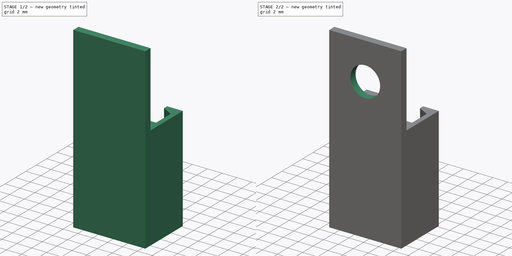
[diagram: build sequence overview — one tinted view per stage of 2, left to right]
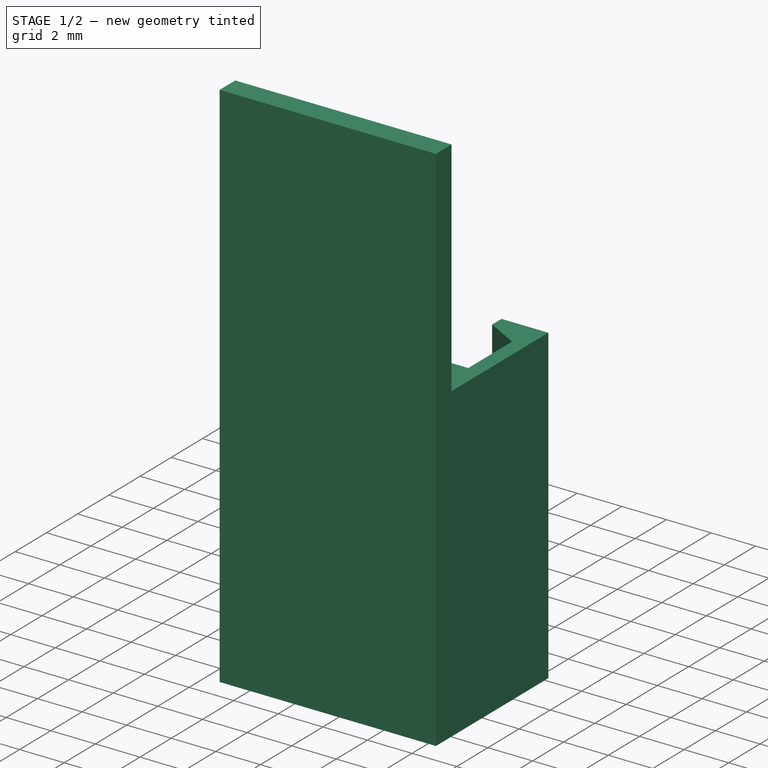
[diagram: stage 1 of 2 — iso view after this stage's code; geometry added in this stage tinted green]
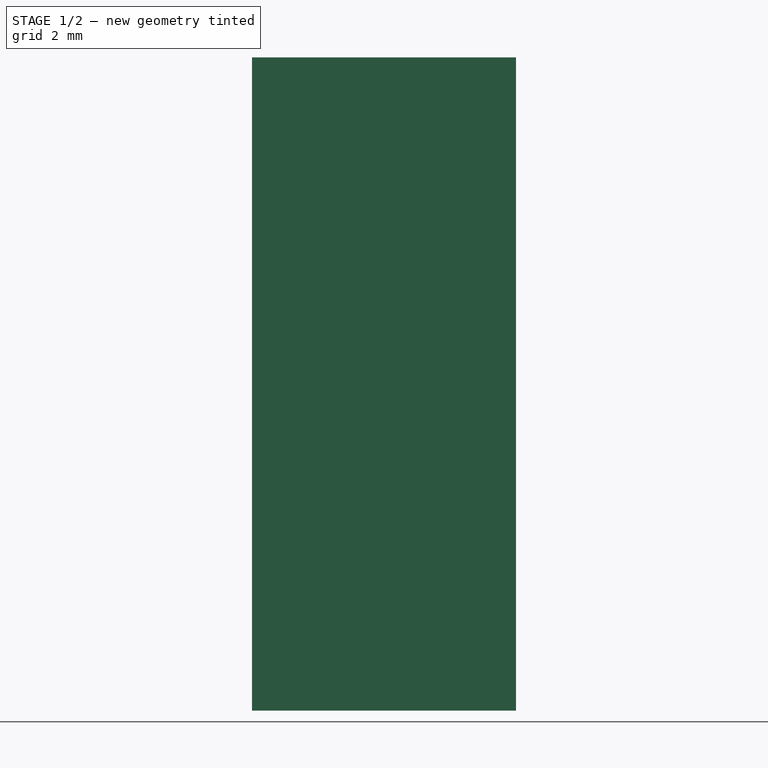
[diagram: stage 1 of 2 — front view after this stage's code; geometry added in this stage tinted green]
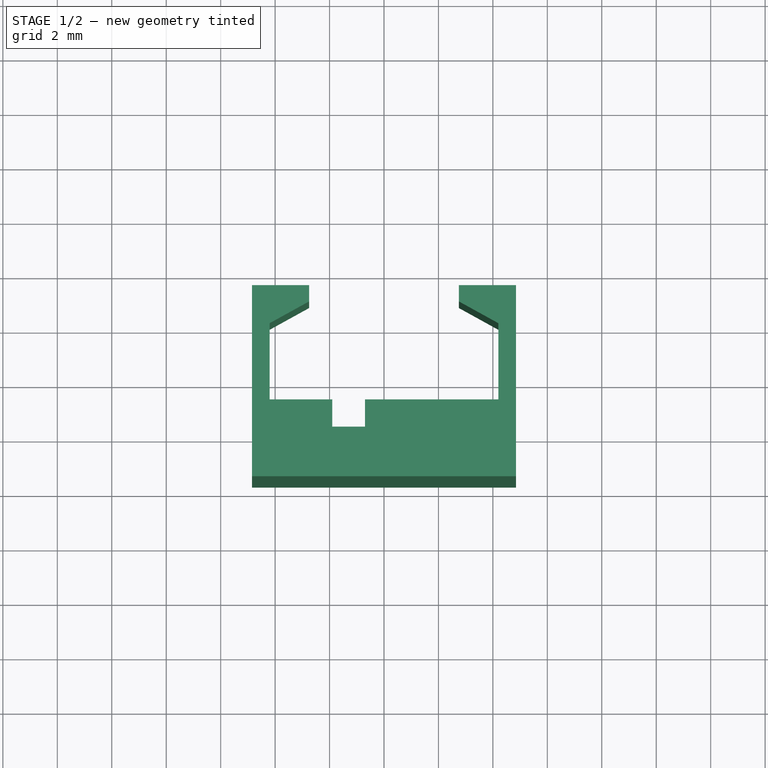
[diagram: stage 1 of 2 — top view after this stage's code; geometry added in this stage tinted green]
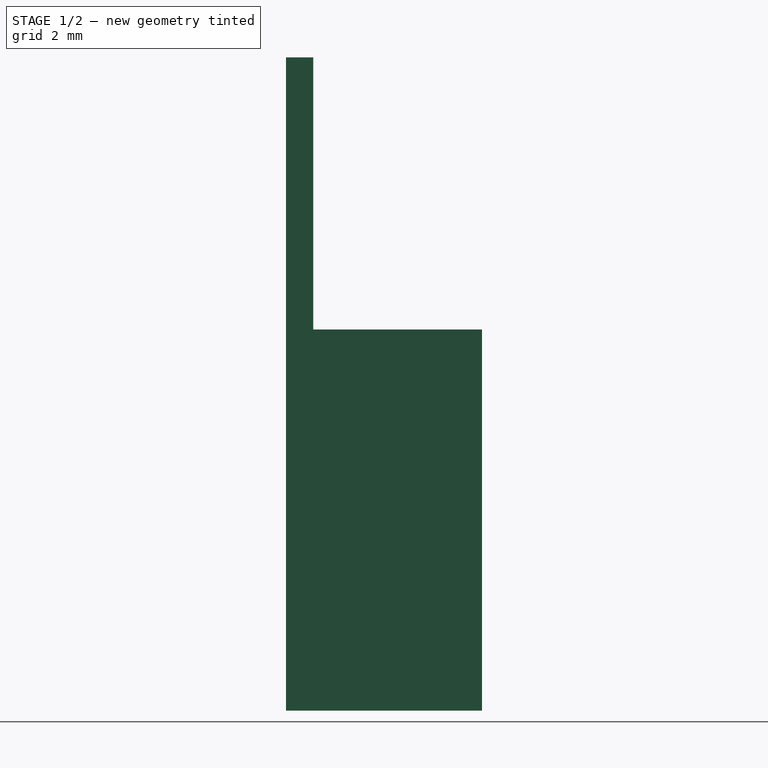
[diagram: stage 1 of 2 — right view after this stage's code; geometry added in this stage tinted green]
FCSTD DOCUMENT  (FreeCAD 0.16R6706 (Git))
Label: portacables
License: CreativeCommons Attribution-ShareAlike
LicenseURL: http://creativecommons.org/licenses/by-sa/4.0/
objects: Sketcher::SketchObject×3, PartDesign::Pad×2, PartDesign::Pocket×1
note: 9 computed .brp shape members not serialized (recipe doc carries the construction recipe); baked Part::Feature solids carry a one-line shape summary decoded from their .brp

FEATURE [Sketcher::SketchObject] Sketch
  sketch-geometry (17):
    g0: LineSegment StartX=-2.75 StartY=3.51662 StartZ=0 EndX=-4.85 EndY=3.51662 EndZ=0
    g1: LineSegment StartX=-4.85 StartY=3.51662 StartZ=0 EndX=-4.85 EndY=-3.68338 EndZ=0
    g2: LineSegment StartX=-4.85 StartY=-3.68338 StartZ=0 EndX=4.85 EndY=-3.68338 EndZ=0
    g3: LineSegment StartX=4.85 StartY=-3.68338 StartZ=0 EndX=4.85 EndY=3.51662 EndZ=0
    g4: LineSegment StartX=4.85 StartY=3.51662 StartZ=0 EndX=2.75 EndY=3.51662 EndZ=0
    g5: LineSegment StartX=2.75 StartY=3.51662 StartZ=0 EndX=2.75 EndY=2.91662 EndZ=0
    g6: LineSegment StartX=2.75 StartY=2.91662 StartZ=0 EndX=4.2 EndY=2.11662 EndZ=0
    g7: LineSegment StartX=4.2 StartY=2.11662 StartZ=0 EndX=4.2 EndY=-0.683379 EndZ=0
    g8: LineSegment StartX=4.2 StartY=-0.683379 StartZ=0 EndX=-0.7 EndY=-0.683379 EndZ=0
    g9: LineSegment StartX=-0.7 StartY=-0.683379 StartZ=0 EndX=-0.7 EndY=-1.68338 EndZ=0
    g10: LineSegment StartX=-0.7 StartY=-1.68338 StartZ=0 EndX=-1.9 EndY=-1.68338 EndZ=0
    g11: LineSegment StartX=-1.9 StartY=-1.68338 StartZ=0 EndX=-1.9 EndY=-0.683379 EndZ=0
    g12: LineSegment StartX=-1.9 StartY=-0.683379 StartZ=0 EndX=-4.2 EndY=-0.683379 EndZ=0
    g13: LineSegment StartX=-4.2 StartY=-0.683379 StartZ=0 EndX=-4.2 EndY=2.11662 EndZ=0
    g14: LineSegment StartX=-4.2 StartY=2.11662 StartZ=0 EndX=-2.75 EndY=2.91662 EndZ=0
    g15: LineSegment StartX=-2.75 StartY=2.91662 StartZ=0 EndX=-2.75 EndY=3.51662 EndZ=0
    g16: LineSegment [constr] StartX=4.2 StartY=-0.683379 StartZ=0 EndX=4.2 EndY=-3.68338 EndZ=0
  constraints (48):
    c: Horizontal(g0)
    c: Coincident(g0,g1)
    c: Vertical(g1)
    c: Coincident(g1,g2)
    c: Horizontal(g2)
    c: Coincident(g2,g3)
    c: Vertical(g3)
    c: Coincident(g3,g4)
    c: Horizontal(g4)
    c: Coincident(g4,g5)
    c: Vertical(g5)
    c: Coincident(g5,g6)
    c: Coincident(g6,g7)
    c: Vertical(g7)
    c: Coincident(g7,g8)
    c: Horizontal(g8)
    c: Coincident(g8,g9)
    c: Coincident(g9,g10)
    c: Horizontal(g10)
    c: Coincident(g10,g11)
    c: Vertical(g11)
    c: Coincident(g11,g12)
    c: Horizontal(g12)
    c: Coincident(g12,g13)
    c: Vertical(g13)
    c: Equal(g0,g4)
    c: Symmetric(g0,g4,g-2)
    c: DistanceX(g0,g0) = 2.1
    c: DistanceX(g8,g8) = 4.9
    c: DistanceX(g10,g10) = 1.2
    c: DistanceX(g12,g12) = 2.3
    c: DistanceY(g13,g13) = 2.8
    c: Equal(g13,g7)
    c: Equal(g11,g9)
    c: Parallel(g9,g-2)
    c: DistanceX(g2,g2) = 9.7
    c: DistanceY(g1,g1) = 7.2
    c: Symmetric(g13,g6,g-2)
    c: DistanceY(g11,g11) = 1
    c: Coincident(g13,g14)
    c: Coincident(g14,g15)
    c: Coincident(g15,g0)
    c: Symmetric(g14,g5,g-2)
    c: DistanceY(g15,g15) = 0.6
    c: Coincident(g16,g7)
    c: PointOnObject(g16,g2)
    c: Parallel(g16,g-2)
    c: DistanceY(g16,g16) = 3
FEATURE [PartDesign::Pad] Pad  label="Portacables"
  Length = 14
  Length2 = 100
  Sketch = -> Sketch
  Type = 0
FEATURE [Sketcher::SketchObject] Sketch001
  ExternalGeometry = -> [Pad]
  Placement = pos=(0,0,14) rot=(0,0,1;0rad)
  Support = -> Pad [Face18]
  sketch-geometry (4):
    g0: LineSegment StartX=-4.85 StartY=-3.68338 StartZ=0 EndX=4.85 EndY=-3.68338 EndZ=0
    g1: LineSegment StartX=4.85 StartY=-3.68338 StartZ=0 EndX=4.85 EndY=-2.68338 EndZ=0
    g2: LineSegment StartX=4.85 StartY=-2.68338 StartZ=0 EndX=-4.85 EndY=-2.68338 EndZ=0
    g3: LineSegment StartX=-4.85 StartY=-2.68338 StartZ=0 EndX=-4.85 EndY=-3.68338 EndZ=0
  constraints (11):
    c: Coincident(g0,g1)
    c: Coincident(g1,g2)
    c: Coincident(g2,g3)
    c: Coincident(g3,g0)
    c: Horizontal(g0)
    c: Horizontal(g2)
    c: Vertical(g1)
    c: Vertical(g3)
    c: Coincident(g0,g-3)
    c: Coincident(g0,g-3)
    c: DistanceY(g1,g1) = 1
FEATURE [PartDesign::Pad] Pad001
  Length = 10
  Length2 = 100
  Sketch = -> Sketch001
  Type = 0
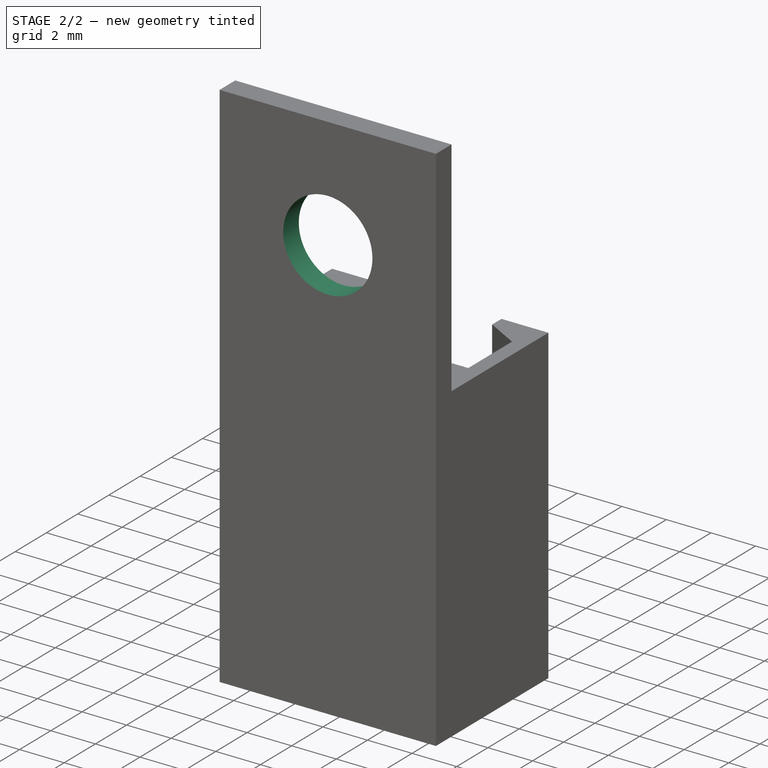
[diagram: stage 2 of 2 — iso view after this stage's code; geometry added in this stage tinted green]
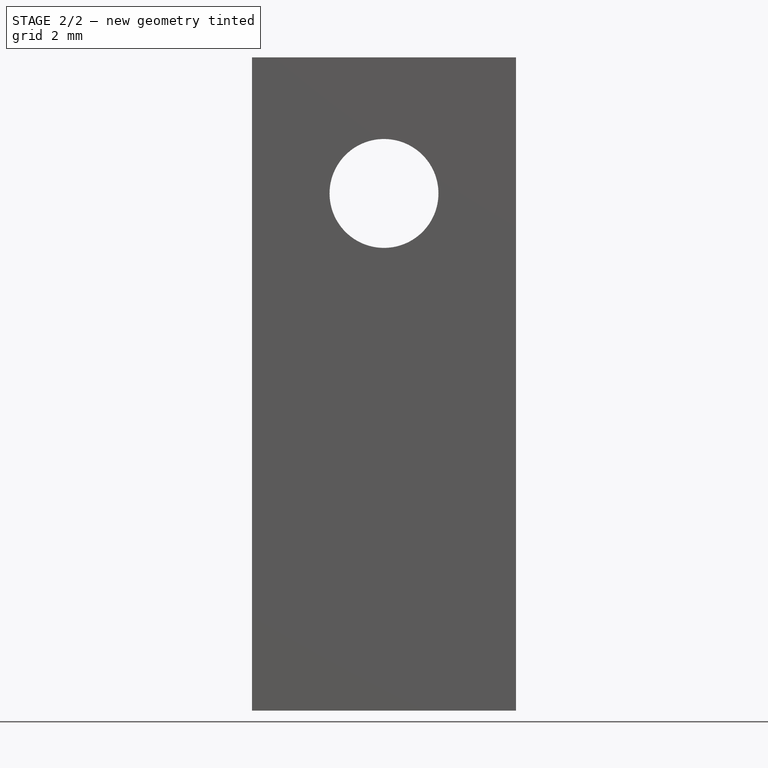
[diagram: stage 2 of 2 — front view after this stage's code; geometry added in this stage tinted green]
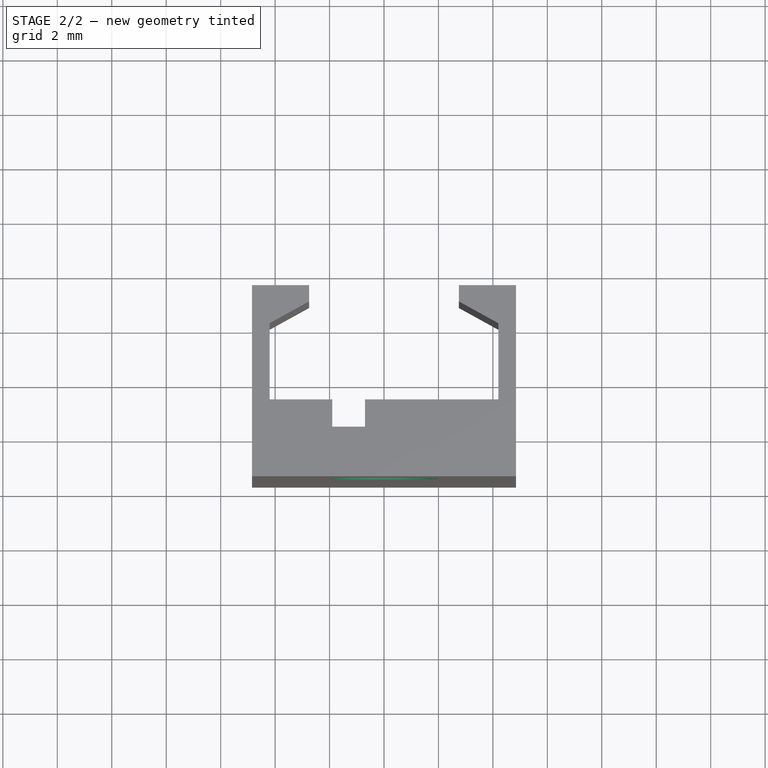
[diagram: stage 2 of 2 — top view after this stage's code; geometry added in this stage tinted green]
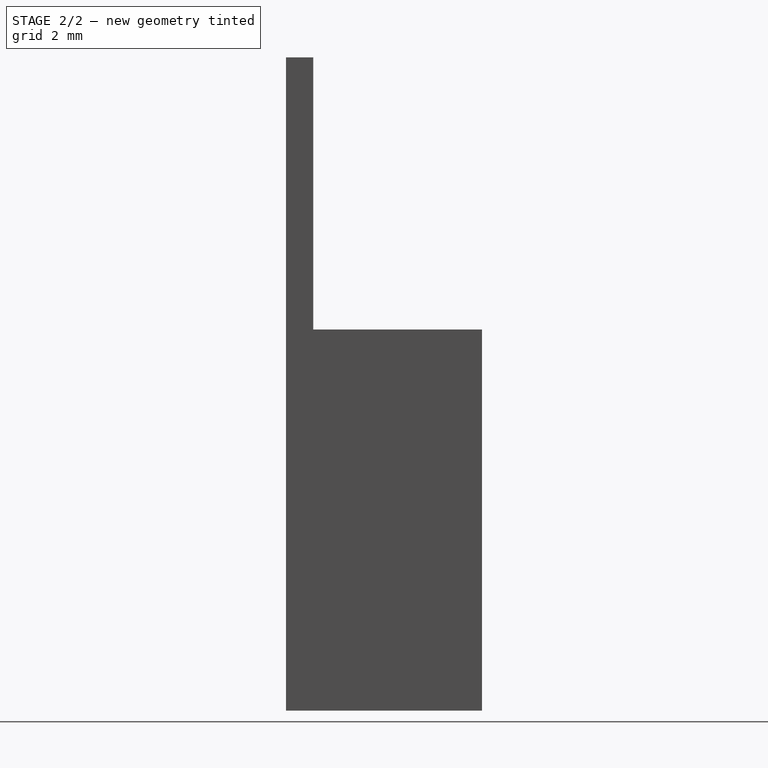
[diagram: stage 2 of 2 — right view after this stage's code; geometry added in this stage tinted green]
FEATURE [Sketcher::SketchObject] Sketch002
  ExternalGeometry = -> [Pad001]
  Placement = pos=(0,-2.68338,0) rot=(0,0.707107,0.707107;3.14159rad)
  Support = -> Pad001 [Face16]
  sketch-geometry (3):
    g0: Circle CenterX=0 CenterY=19 CenterZ=0 NormalX=0 NormalY=0 NormalZ=1 Radius=2
    g1: LineSegment [constr] StartX=-4.85 StartY=14 StartZ=0 EndX=4.85 EndY=24 EndZ=0
    g2: GeomPoint [constr] X=0 Y=19 Z=0
  constraints (7):
    c: PointOnObject(g0,g-2)
    c: Coincident(g1,g-3)
    c: Coincident(g1,g-4)
    c: PointOnObject(g2,g1)
    c: PointOnObject(g2,g-2)
    c: Coincident(g2,g0)
    c: Radius(g0) = 2
FEATURE [PartDesign::Pocket] Pocket  label="Portacables_agujero_inferior"
  Length = 5
  Sketch = -> Sketch002
  Type = 0
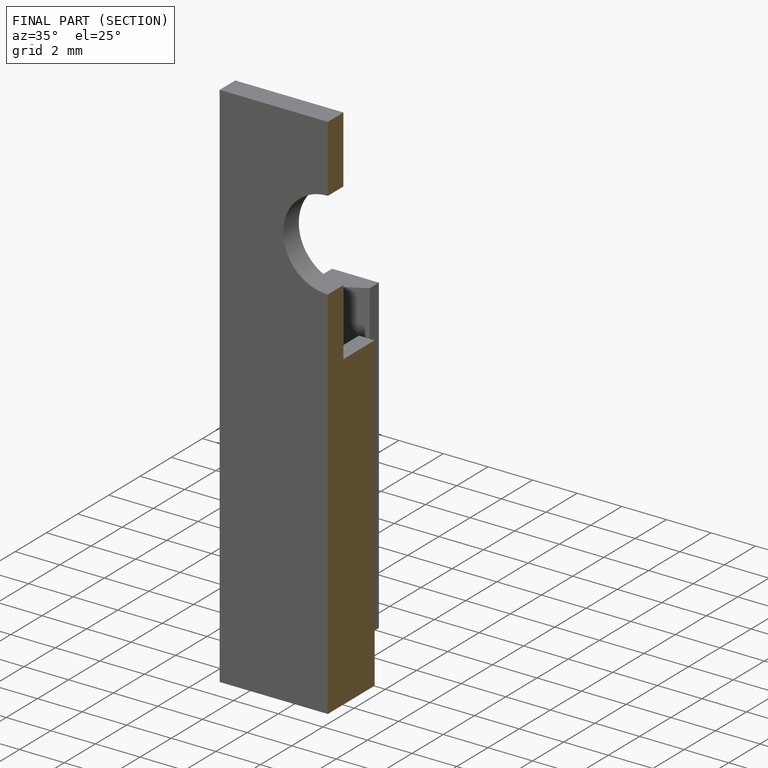
[diagram: finished part — half-section view (interior)]
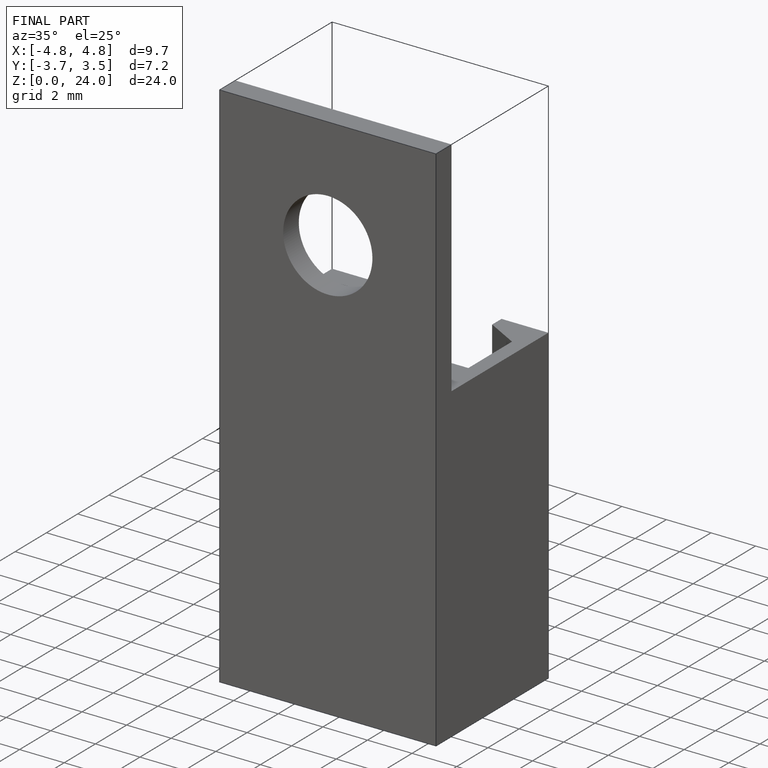
[diagram: finished part — iso view with bounding-box wireframe]
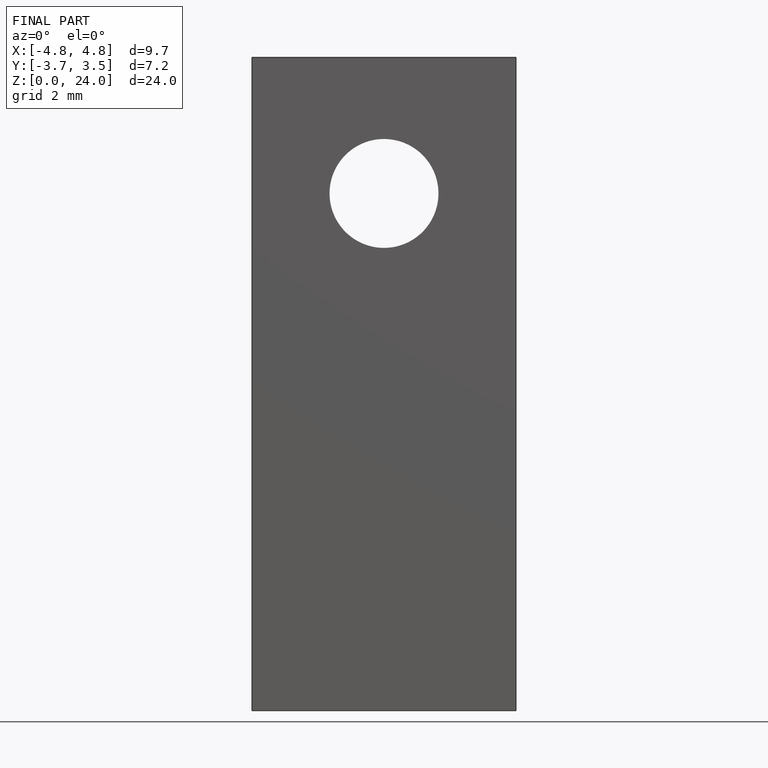
[diagram: finished part — front view with bounding-box wireframe]
